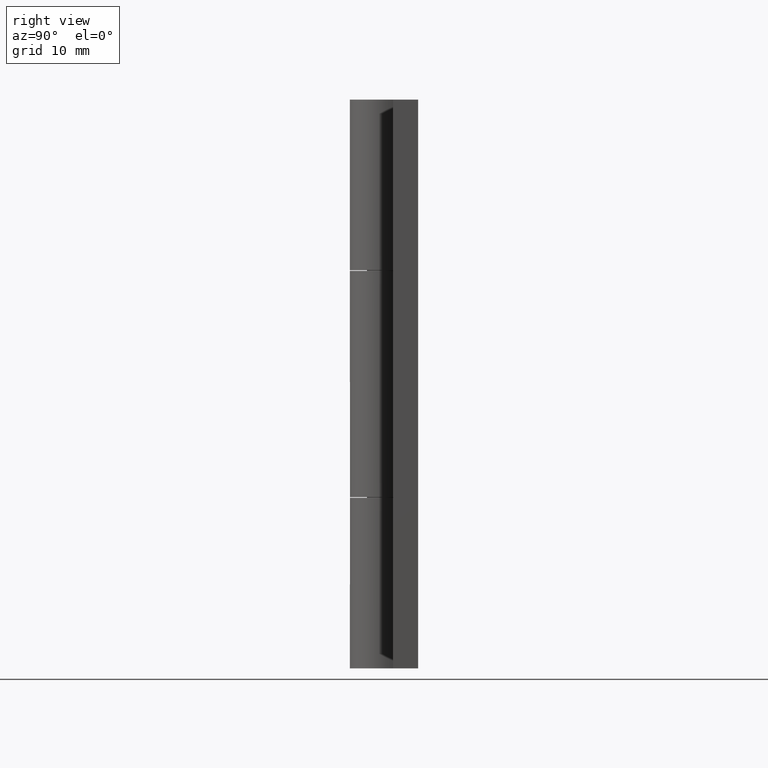
[diagram: clean part render]
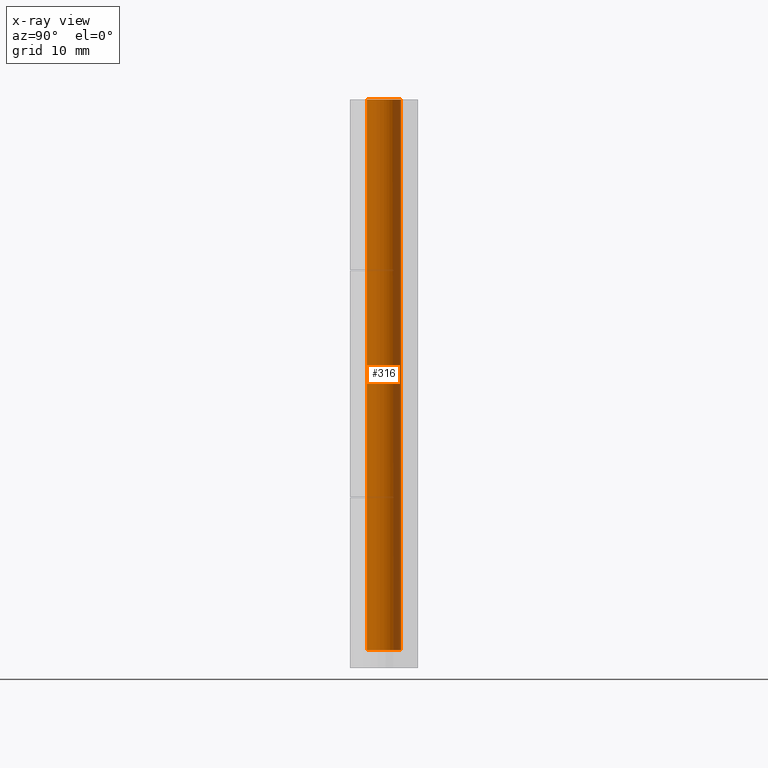
[diagram: x-ray — body ghosted, one internal face saturated and labeled with its STEP entity id]
A machine part, right view, then the same camera in x-ray: the body is ghosted and one INTERNAL B-rep face — a face not visible from any outside direction — is saturated and labeled: STEP entity #316.
In plain terms, the highlighted face is a freeform B-spline surface patch.
Its self-contained STEP definition (entity closure, byte-faithful):
#62=CARTESIAN_POINT('',(1.404215368032572,0.527426962079092,1.604705110071194));
#63=VERTEX_POINT('',#62);
#64=CARTESIAN_POINT('',(1.500000000000000,0.0,1.604705110105465));
#65=VERTEX_POINT('',#64);
#66=CARTESIAN_POINT('',(1.404215368032572,0.527426962079092,1.604705110071194));
#67=CARTESIAN_POINT('',(1.500000000000000,0.272411079623751,1.604705110105465));
#68=CARTESIAN_POINT('',(1.500000000000000,0.0,1.604705110105465));
#76=(BOUNDED_CURVE()B_SPLINE_CURVE(2,(#66,#67,#68),.UNSPECIFIED.,.F.,.U.)B_SPLINE_CURVE_WITH_KNOTS((3,3),(0.440284170792158,0.500000000000000),.UNSPECIFIED.)CURVE()GEOMETRIC_REPRESENTATION_ITEM()RATIONAL_B_SPLINE_CURVE((0.893499554505127,0.930038554276803,1.0))REPRESENTATION_ITEM(''));
#77=EDGE_CURVE('',#63,#65,#76,.T.);
#79=CARTESIAN_POINT('',(0.091572809377813,-1.497202197628180,1.604705110105467));
#80=VERTEX_POINT('',#79);
#81=CARTESIAN_POINT('',(1.500000000000000,0.0,1.604705110105465));
#82=CARTESIAN_POINT('',(1.500000000000000,-1.411059100073276,1.604705110105465));
#83=CARTESIAN_POINT('',(0.091572809377813,-1.497202197628180,1.604705110105467));
#91=(BOUNDED_CURVE()B_SPLINE_CURVE(2,(#81,#82,#83),.UNSPECIFIED.,.F.,.U.)B_SPLINE_CURVE_WITH_KNOTS((3,3),(0.500000000000000,0.739332962207151),.UNSPECIFIED.)CURVE()GEOMETRIC_REPRESENTATION_ITEM()RATIONAL_B_SPLINE_CURVE((1.0,0.719603993323957,0.976072041598581))REPRESENTATION_ITEM(''));
#92=EDGE_CURVE('',#65,#80,#91,.T.);
#161=CARTESIAN_POINT('',(-0.177051352095006,1.489514289532440,1.604705110105467));
#162=VERTEX_POINT('',#161);
#163=CARTESIAN_POINT('',(-0.177051352095006,1.489514289532440,1.604705110105467));
#164=CARTESIAN_POINT('',(-0.088836179588895,1.500000000000000,1.604705110105465));
#165=CARTESIAN_POINT('',(0.0,1.500000000000000,1.604705110105465));
#166=CARTESIAN_POINT('',(1.038914392791579,1.500000000000000,1.604705110105464));
#167=CARTESIAN_POINT('',(1.404215368032572,0.527426962079092,1.604705110071194));
#175=(BOUNDED_CURVE()B_SPLINE_CURVE(2,(#163,#164,#165,#166,#167),.UNSPECIFIED.,.F.,.U.)B_SPLINE_CURVE_WITH_KNOTS((3,2,3),(0.229562473490712,0.250000000000000,0.440284170792158),.UNSPECIFIED.)CURVE()GEOMETRIC_REPRESENTATION_ITEM()RATIONAL_B_SPLINE_CURVE((0.956026754139018,0.976055948304438,1.0,0.777068226909744,0.893499554505128))REPRESENTATION_ITEM(''));
#176=EDGE_CURVE('',#162,#63,#175,.T.);
#245=CARTESIAN_POINT('',(-0.177051351985138,1.489514289545500,51.209882372247378));
#246=CARTESIAN_POINT('',(-0.134422092956966,1.494581423172908,51.209882372247385));
#247=CARTESIAN_POINT('',(-0.091572809302285,1.497202197632800,51.209882372247371));
#248=CARTESIAN_POINT('',(1.405629388330515,1.588775006935085,51.209882372247364));
#249=CARTESIAN_POINT('',(1.497202197632800,0.091572809302285,51.209882372247371));
#250=CARTESIAN_POINT('',(1.588775006935085,-1.405629388330515,51.209882372247364));
#251=CARTESIAN_POINT('',(0.091572809302285,-1.497202197632800,51.209882372247371));
#252=CARTESIAN_POINT('',(-0.177051351985138,1.489514289545500,0.364575678551915));
#253=CARTESIAN_POINT('',(-0.134422092956966,1.494581423172908,0.364575678551915));
#254=CARTESIAN_POINT('',(-0.091572809302285,1.497202197632800,0.364575678551915));
#255=CARTESIAN_POINT('',(1.405629388330515,1.588775006935085,0.364575678551915));
#256=CARTESIAN_POINT('',(1.497202197632800,0.091572809302285,0.364575678551915));
#257=CARTESIAN_POINT('',(1.588775006935085,-1.405629388330515,0.364575678551915));
#258=CARTESIAN_POINT('',(0.091572809302285,-1.497202197632800,0.364575678551915));
#266=(BOUNDED_SURFACE()B_SPLINE_SURFACE(2,1,((#245,#252),(#246,#253),(#247,#254),(#248,#255),(#249,#256),(#250,#257),(#251,#258)),.UNSPECIFIED.,.F.,.F.,.U.)B_SPLINE_SURFACE_WITH_KNOTS((3,2,2,3),(2,2),(3.078760800517997,3.141592653589793,4.712388980384690,6.283185307179586),(0.0,50.845306693695463),.UNSPECIFIED.)GEOMETRIC_REPRESENTATION_ITEM()RATIONAL_B_SPLINE_SURFACE(((0.977505800795127,0.977505800795127),(0.988284271247462,0.988284271247462),(1.0,1.0),(0.707106781186548,0.707106781186548),(1.0,1.0),(0.707106781186548,0.707106781186548),(1.0,1.0)))REPRESENTATION_ITEM('')SURFACE());
#267=ORIENTED_EDGE('',*,*,#176,.F.);
#268=CARTESIAN_POINT('',(-0.177051352095006,1.489514289532440,50.0));
#269=VERTEX_POINT('',#268);
#270=CARTESIAN_POINT('',(-0.177051352095006,1.489514289532440,50.0));
#271=CARTESIAN_POINT('',(-0.177051352095006,1.489514289532440,1.604705110105467));
#272=QUASI_UNIFORM_CURVE('',1,(#270,#271),.UNSPECIFIED.,.F.,.U.);
#273=EDGE_CURVE('',#269,#162,#272,.T.);
#274=ORIENTED_EDGE('',*,*,#273,.F.);
#275=CARTESIAN_POINT('',(1.500000000000000,0.0,50.0));
#276=VERTEX_POINT('',#275);
#277=CARTESIAN_POINT('',(-0.177051352095006,1.489514289532440,50.0));
#278=CARTESIAN_POINT('',(-0.088836179588895,1.500000000000000,50.000000000000007));
#279=CARTESIAN_POINT('',(0.0,1.500000000000000,50.0));
#280=CARTESIAN_POINT('',(1.500000000000000,1.500000000000000,50.0));
#281=CARTESIAN_POINT('',(1.500000000000000,0.0,50.0));
#289=(BOUNDED_CURVE()B_SPLINE_CURVE(2,(#277,#278,#279,#280,#281),.UNSPECIFIED.,.F.,.U.)B_SPLINE_CURVE_WITH_KNOTS((3,2,3),(0.229562473490712,0.250000000000000,0.500000000000000),.UNSPECIFIED.)CURVE()GEOMETRIC_REPRESENTATION_ITEM()RATIONAL_B_SPLINE_CURVE((0.956026754139018,0.976055948304438,1.0,0.707106781186548,1.0))REPRESENTATION_ITEM(''));
#290=EDGE_CURVE('',#269,#276,#289,.T.);
#291=ORIENTED_EDGE('',*,*,#290,.T.);
#292=CARTESIAN_POINT('',(0.091572809453340,-1.497202197623561,50.0));
#293=VERTEX_POINT('',#292);
#294=CARTESIAN_POINT('',(1.500000000000000,0.0,50.0));
#295=CARTESIAN_POINT('',(1.500000000000000,-1.411059100073276,49.999999999999993));
#296=CARTESIAN_POINT('',(0.091572809453340,-1.497202197623561,50.0));
#304=(BOUNDED_CURVE()B_SPLINE_CURVE(2,(#294,#295,#296),.UNSPECIFIED.,.F.,.U.)B_SPLINE_CURVE_WITH_KNOTS((3,3),(0.500000000000000,0.739332962207151),.UNSPECIFIED.)CURVE()GEOMETRIC_REPRESENTATION_ITEM()RATIONAL_B_SPLINE_CURVE((1.0,0.719603993323957,0.976072041598581))REPRESENTATION_ITEM(''));
#305=EDGE_CURVE('',#276,#293,#304,.T.);
#306=ORIENTED_EDGE('',*,*,#305,.T.);
#307=CARTESIAN_POINT('',(0.091572809453340,-1.497202197623561,50.0));
#308=CARTESIAN_POINT('',(0.091572809377813,-1.497202197628180,1.604705110105467));
#309=QUASI_UNIFORM_CURVE('',1,(#307,#308),.UNSPECIFIED.,.F.,.U.);
#310=EDGE_CURVE('',#293,#80,#309,.T.);
#311=ORIENTED_EDGE('',*,*,#310,.T.);
#312=ORIENTED_EDGE('',*,*,#92,.F.);
#313=ORIENTED_EDGE('',*,*,#77,.F.);
#314=EDGE_LOOP('',(#267,#274,#291,#306,#311,#312,#313));
#315=FACE_OUTER_BOUND('',#314,.T.);
#316=ADVANCED_FACE('',(#315),#266,.T.);